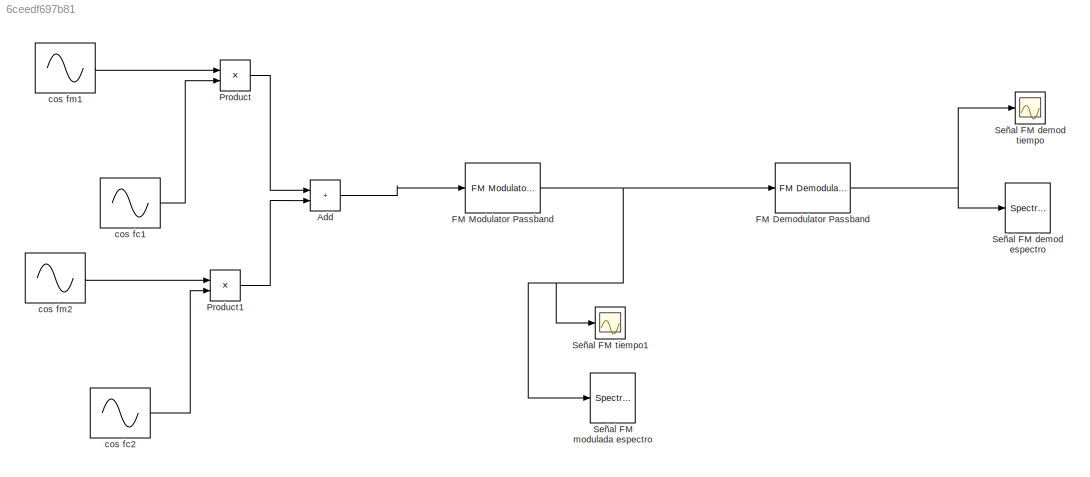
MODEL slx_6ceedf697b81
KIND model
CONFIG AbsTol = auto
CONFIG EnableMultiTasking = off
CONFIG FixedStep = auto
CONFIG MaxStep = auto
CONFIG MinStep = auto
CONFIG RelTol = 1e-3
CONFIG SampleTimeConstraint = Unconstrained
CONFIG SolverName = VariableStepAuto
CONFIG StartTime = 0.0
CONFIG StopTime = 2
BLOCK [Sum] Add
  IconShape = rectangular
BLOCK [Reference] FM Demodulator Passband  REF=commanapbnd3/FM
Demodulator
Passband
  SourceBlock = commanapbnd3/FM\nDemodulator\nPassband
  SourceType = FM Demodulator Passband
BLOCK [Reference] FM Modulator Passband  REF=commanapbnd3/FM
Modulator
Passband
  SourceBlock = commanapbnd3/FM\nModulator\nPassband
  SourceType = FM Modulator Passband
BLOCK [Product] Product
BLOCK [Product] Product1
BLOCK [SpectrumAnalyzer] Señal FM demod espectro
  GraphicalSettings = {"GraphicalSettings":{"Style":{"BackgroundColor":[0.12941176470588237,0.12941176470588237,0.12941176470588237],"AxesColor":[0.07058823529411765,0.07058823529411765,0.07058823529411765],"LabelsColor":[0.8509803921568627,0.8509803921568627,0.8509803921568627],"PreserveColors":false,"Visible":[true],"LineStyle":["-"],"LineColor":[[1,1,0.06666666666666667]],"LineWidth":[1.5],"Marker":["none"],"FontSiz...<+929ch>
  OpenAtSimulationStart = off
  SampleRate = 44.1e3
  ScopeFrameLocation = window
  ShowLegend = on
  StartFrequency = 20
  StopFrequency = 20e3
  WasSavedAsWebScope = on
  WindowPosition = [1.000000,1.000000,1920.000000,1057.000000,]
  YLimits = [-69.60389106,27.43586964]
BLOCK [Scope] Señal FM demod tiempo
  Floating = off
  NumInputPorts = 1
  ScopeSpecificationString = Simulink.scopes.TimeScopeBlockCfg('CurrentConfiguration', extmgr.ConfigurationSet(extmgr.Configuration('Core','General UI',true),extmgr.Configuration('Core','Source UI',true),extmgr.Configuration('Sources','WiredSimulink',true,'DataLoggingVariableName','ScopeData1'),extmgr.Configuration('Visuals','Time Domain',true,'SerializedDisplays',{struct('MinYLimReal','-3.33034','MaxYLimReal','3.70337','YLab...<+1455ch>
BLOCK [SpectrumAnalyzer] Señal FM modulada espectro
  GraphicalSettings = {"GraphicalSettings":{"Style":{"BackgroundColor":[0.12941176470588237,0.12941176470588237,0.12941176470588237],"AxesColor":[0.07058823529411765,0.07058823529411765,0.07058823529411765],"LabelsColor":[0.8509803921568627,0.8509803921568627,0.8509803921568627],"PreserveColors":false,"Visible":[true],"LineStyle":["-"],"LineColor":[[1,1,0.06666666666666667]],"LineWidth":[1.5],"Marker":["none"],"FontSiz...<+930ch>
  OpenAtSimulationStart = off
  SampleRate = 44.1e3
  ScopeFrameLocation = window
  ShowLegend = on
  StartFrequency = 20
  StopFrequency = 20e3
  WasSavedAsWebScope = on
  WindowPosition = [1.000000,1.000000,1920.000000,1057.000000,]
  YLimits = [-254.73110184,54.94742733]
BLOCK [Scope] Señal FM tiempo1
  Floating = off
  NumInputPorts = 1
  ScopeSpecificationString = Simulink.scopes.TimeScopeBlockCfg('CurrentConfiguration', extmgr.ConfigurationSet(extmgr.Configuration('Core','General UI',true),extmgr.Configuration('Core','Source UI',true),extmgr.Configuration('Sources','WiredSimulink',true),extmgr.Configuration('Visuals','Time Domain',true,'SerializedDisplays',{struct('MinYLimReal','-3.33034','MaxYLimReal','3.70337','YLabelReal','','MinYLimMag','0.00000','MaxY...<+1414ch>
BLOCK [Sin] cos fc1
  Frequency = 2*pi*100
  Phase = pi/2
  SampleTime = ts_mux
BLOCK [Sin] cos fc2
  Frequency = 2*pi*500
  Phase = pi/2
  SampleTime = ts_mux
BLOCK [Sin] cos fm1
  Frequency = 2*pi*10
  Phase = pi/2
  SampleTime = ts_mux
BLOCK [Sin] cos fm2
  Frequency = 2*pi*50
  Phase = pi/2
  SampleTime = ts_mux
LINE Add:1 -> FM Modulator Passband:1
NET FM Demodulator Passband:1 -> Señal FM demod espectro:1, Señal FM demod tiempo:1
NET FM Modulator Passband:1 -> FM Demodulator Passband:1, Señal FM modulada espectro:1, Señal FM tiempo1:1
LINE Product1:1 -> Add:2
LINE Product:1 -> Add:1
LINE cos fc1:1 -> Product:2
LINE cos fc2:1 -> Product1:2
LINE cos fm1:1 -> Product:1
LINE cos fm2:1 -> Product1:1
note: NET lines group one-source signal fan-out (src -> all destinations, sorted); 1:1 wires keep LINE
